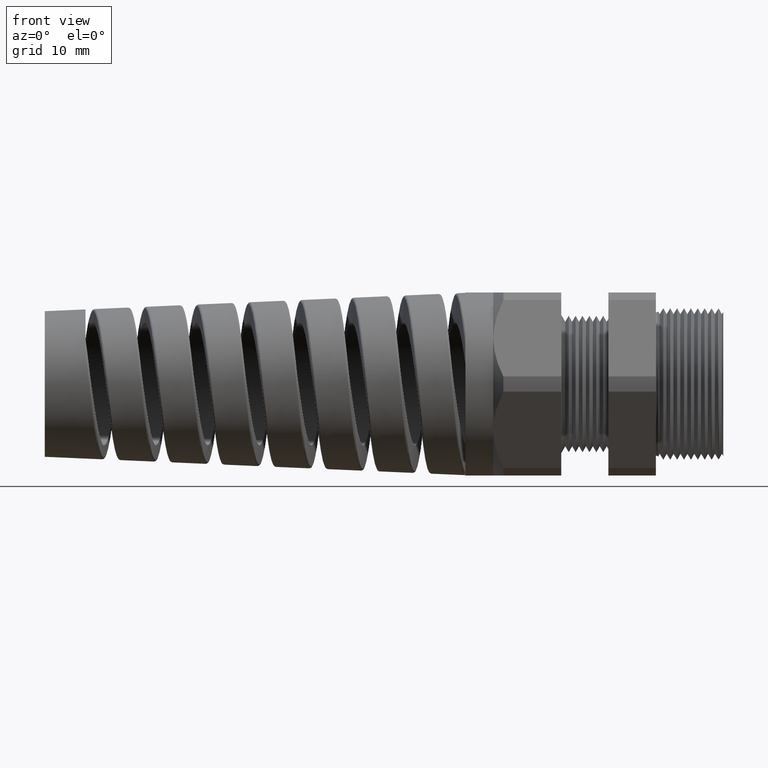
[diagram: clean part render]
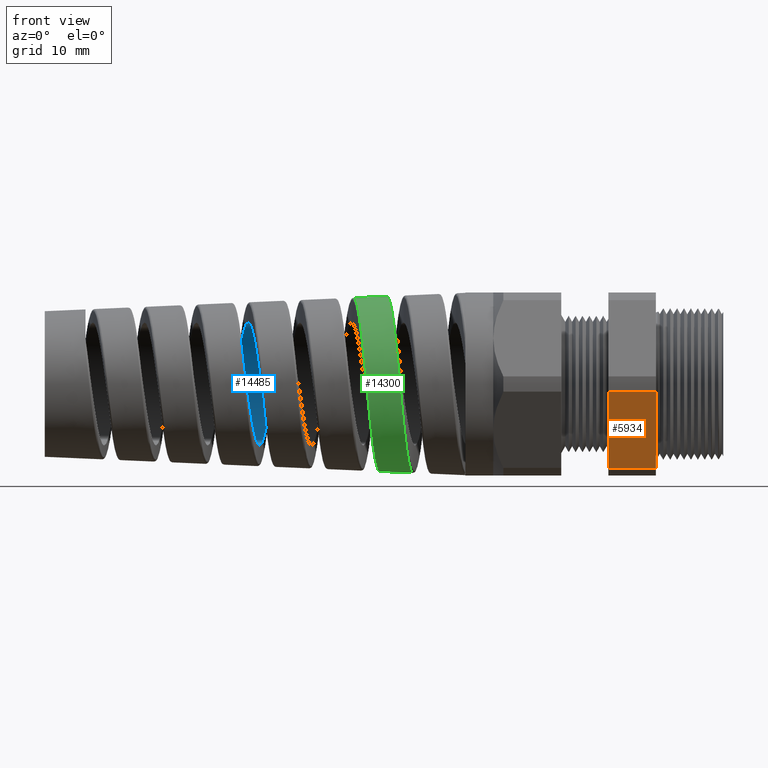
[diagram: same view with three faces highlighted in distinct colors, each labeled with its STEP entity id]
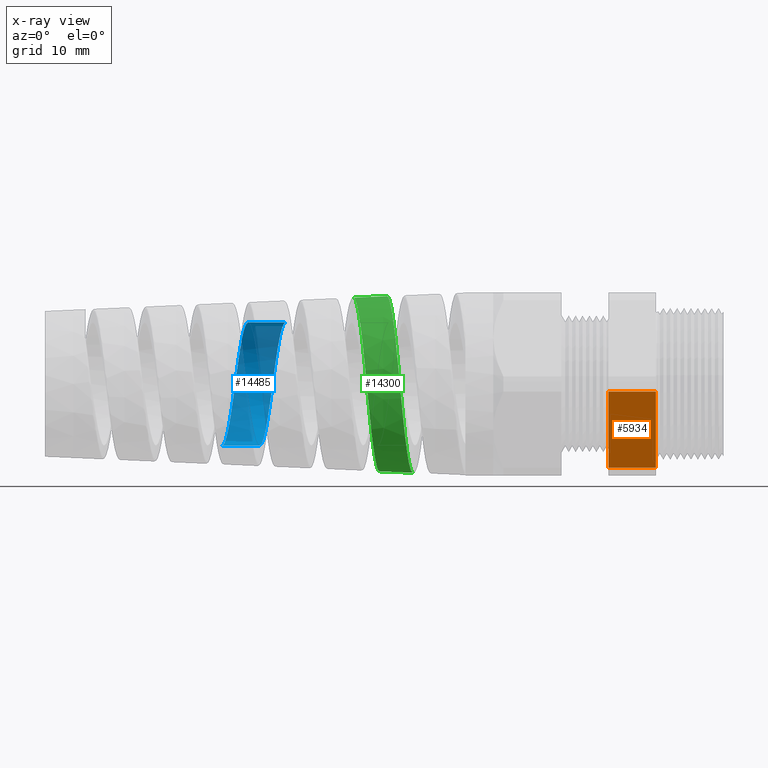
[diagram: x-ray of the same camera — body ghosted, the three highlighted faces saturated]
A machine part, front view with three faces highlighted in distinct colors.
The next image is the same camera in x-ray (body ghosted, the three faces saturated) — at least one of them is partly hidden behind the body in this view.
Their STEP definitions:

[orange] entity #5934 — the highlighted planar face has unit normal (0, -0.866, -0.5).
#5157 = CARTESIAN_POINT ( 'NONE',  ( -0.3100000000000000000, -0.3313250556190258700, -0.4861281698472630400 ) ) ;
#5158 = DIRECTION ( 'NONE',  ( 0.0000000000000000000, 0.5000000000000002200, -0.8660254037844386000 ) ) ;
#5159 = VECTOR ( 'NONE', #5158, 39.37007874015747400 ) ;
#5160 = CARTESIAN_POINT ( 'NONE',  ( -0.3100000000000000000, -0.1939934640057522900, -0.7239934640057527100 ) ) ;
#5161 = LINE ( 'NONE', #5160, #5159 ) ;
#5162 = CARTESIAN_POINT ( 'NONE',  ( -0.3100000000000000000, -0.5866618723924791300, -0.04387183015273717100 ) ) ;
#5783 = VERTEX_POINT ( 'NONE', #7164 ) ;
#5785 = EDGE_CURVE ( 'NONE', #5783, #5786, #7163, .T. ) ;
#5786 = VERTEX_POINT ( 'NONE', #7159 ) ;
#5864 = ORIENTED_EDGE ( 'NONE', *, *, #14547, .F. ) ;
#5932 = EDGE_CURVE ( 'NONE', #14545, #5786, #7398, .T. ) ;
#5934 = ADVANCED_FACE ( 'NONE', ( #7394 ), #7393, .T. ) ;
#5935 = EDGE_LOOP ( 'NONE', ( #5936, #5937, #5938, #5864 ) ) ;
#5936 = ORIENTED_EDGE ( 'NONE', *, *, #5932, .T. ) ;
#5937 = ORIENTED_EDGE ( 'NONE', *, *, #5785, .F. ) ;
#5938 = ORIENTED_EDGE ( 'NONE', *, *, #5939, .F. ) ;
#5939 = EDGE_CURVE ( 'NONE', #14548, #5783, #7388, .T. ) ;
#7159 = CARTESIAN_POINT ( 'NONE',  ( -0.5855905511811022600, -0.5866618723924791300, -0.04387183015273717100 ) ) ;
#7160 = DIRECTION ( 'NONE',  ( 0.0000000000000000000, -0.5000000000000002200, 0.8660254037844386000 ) ) ;
#7161 = VECTOR ( 'NONE', #7160, 39.37007874015747400 ) ;
#7162 = CARTESIAN_POINT ( 'NONE',  ( -0.5855905511811022600, -0.1939934640057524300, -0.7239934640057527100 ) ) ;
#7163 = LINE ( 'NONE', #7162, #7161 ) ;
#7164 = CARTESIAN_POINT ( 'NONE',  ( -0.5855905511811022600, -0.3313250556190258700, -0.4861281698472630400 ) ) ;
#7385 = DIRECTION ( 'NONE',  ( -1.000000000000000000, 0.0000000000000000000, 0.0000000000000000000 ) ) ;
#7386 = VECTOR ( 'NONE', #7385, 39.37007874015748100 ) ;
#7387 = CARTESIAN_POINT ( 'NONE',  ( 0.08000000000000023800, -0.3313250556190258700, -0.4861281698472630400 ) ) ;
#7388 = LINE ( 'NONE', #7387, #7386 ) ;
#7389 = DIRECTION ( 'NONE',  ( 0.0000000000000000000, 0.5000000000000001100, -0.8660254037844386000 ) ) ;
#7390 = DIRECTION ( 'NONE',  ( 0.0000000000000000000, -0.8660254037844386000, -0.5000000000000001100 ) ) ;
#7391 = CARTESIAN_POINT ( 'NONE',  ( 0.08000000000000023800, -0.3313250556190259800, -0.4861281698472630400 ) ) ;
#7392 = AXIS2_PLACEMENT_3D ( 'NONE', #7391, #7390, #7389 ) ;
#7393 = PLANE ( 'NONE',  #7392 ) ;
#7394 = FACE_OUTER_BOUND ( 'NONE', #5935, .T. ) ;
#7395 = DIRECTION ( 'NONE',  ( -1.000000000000000000, 0.0000000000000000000, 0.0000000000000000000 ) ) ;
#7396 = VECTOR ( 'NONE', #7395, 39.37007874015748100 ) ;
#7397 = CARTESIAN_POINT ( 'NONE',  ( 0.08000000000000023800, -0.5866618723924791300, -0.04387183015273717100 ) ) ;
#7398 = LINE ( 'NONE', #7397, #7396 ) ;
#14545 = VERTEX_POINT ( 'NONE', #5162 ) ;
#14547 = EDGE_CURVE ( 'NONE', #14545, #14548, #5161, .T. ) ;
#14548 = VERTEX_POINT ( 'NONE', #5157 ) ;

[blue] entity #14485 — the highlighted cylindrical surface (partial cylindrical patch) has radius 9.0424 mm, axis along (1, 0, 0).
#3458 = CARTESIAN_POINT ( 'NONE',  ( -2.822159956129014700, 4.852839836151481800E-013, -0.3560000000000000900 ) ) ;
#3916 = CARTESIAN_POINT ( 'NONE',  ( -2.455194617607312500, 4.797850723997763300E-013, 0.3559999999999998200 ) ) ;
#3917 = DIRECTION ( 'NONE',  ( 1.000000000000000000, 0.0000000000000000000, 0.0000000000000000000 ) ) ;
#3918 = VECTOR ( 'NONE', #3917, 39.37007874015748100 ) ;
#3919 = CARTESIAN_POINT ( 'NONE',  ( 0.09602717987635048200, 4.359742604964577000E-017, 0.3559999999999999800 ) ) ;
#3920 = LINE ( 'NONE', #3919, #3918 ) ;
#4059 = DIRECTION ( 'NONE',  ( 1.000000000000000000, 0.0000000000000000000, 0.0000000000000000000 ) ) ;
#4060 = VECTOR ( 'NONE', #4059, 39.37007874015748100 ) ;
#4061 = CARTESIAN_POINT ( 'NONE',  ( 0.09602717987635048200, 0.0000000000000000000, -0.3559999999999999800 ) ) ;
#4062 = LINE ( 'NONE', #4061, #4060 ) ;
#4063 = CARTESIAN_POINT ( 'NONE',  ( -2.605262965233127400, 5.842345059044108700E-013, -0.3559999999999999800 ) ) ;
#4462 = CARTESIAN_POINT ( 'NONE',  ( -2.772171272658247300, 0.3090010518207686500, -0.1783430733160978100 ) ) ;
#4463 = CARTESIAN_POINT ( 'NONE',  ( -2.769060175600740700, 0.3199751102197548900, -0.1577652059249336800 ) ) ;
#4464 = CARTESIAN_POINT ( 'NONE',  ( -2.764396290099594200, 0.3332989239104294800, -0.1256276647889313600 ) ) ;
#4465 = CARTESIAN_POINT ( 'NONE',  ( -2.762840170570397500, 0.3372218632710287100, -0.1146893645844773000 ) ) ;
#4466 = CARTESIAN_POINT ( 'NONE',  ( -2.759710569221188500, 0.3440100949561861700, -0.09235415521248231700 ) ) ;
#4467 = CARTESIAN_POINT ( 'NONE',  ( -2.758129407493230100, 0.3468828759323221400, -0.08090001860906004300 ) ) ;
#4468 = CARTESIAN_POINT ( 'NONE',  ( -2.753430151347194200, 0.3537205881253522300, -0.04651791096292925300 ) ) ;
#4469 = CARTESIAN_POINT ( 'NONE',  ( -2.750335237239457200, 0.3559879972746894900, -0.02342898587798301900 ) ) ;
#4470 = CARTESIAN_POINT ( 'NONE',  ( -2.744102333568295900, 0.3560119085573247300, 0.02306279576040249500 ) ) ;
#4471 = CARTESIAN_POINT ( 'NONE',  ( -2.740938026628621000, 0.3536934761794672300, 0.04666398048186461800 ) ) ;
#4472 = CARTESIAN_POINT ( 'NONE',  ( -2.734704423837953000, 0.3446193904982260400, 0.09227176089659572300 ) ) ;
#4473 = CARTESIAN_POINT ( 'NONE',  ( -2.731609644567114100, 0.3379009407361932000, 0.1144758483443580200 ) ) ;
#4474 = CARTESIAN_POINT ( 'NONE',  ( -2.726911596356519600, 0.3245076576625156600, 0.1468578275732302700 ) ) ;
#4475 = CARTESIAN_POINT ( 'NONE',  ( -2.725330183382749500, 0.3194605779817840700, 0.1575349802189352500 ) ) ;
#4476 = CARTESIAN_POINT ( 'NONE',  ( -2.722199657900354900, 0.3084514694989680700, 0.1781292279244567600 ) ) ;
#4477 = CARTESIAN_POINT ( 'NONE',  ( -2.720643488937810200, 0.3024732972460671400, 0.1880967917125647700 ) ) ;
#4478 = CARTESIAN_POINT ( 'NONE',  ( -2.715979568945030600, 0.2831480124816568300, 0.2170281028474377000 ) ) ;
#4479 = CARTESIAN_POINT ( 'NONE',  ( -2.712871846001793300, 0.2683967611726232300, 0.2350566343029512900 ) ) ;
#4480 = CARTESIAN_POINT ( 'NONE',  ( -2.706569610542169700, 0.2351635669462939500, 0.2683030740019231600 ) ) ;
#4481 = CARTESIAN_POINT ( 'NONE',  ( -2.703469243143174600, 0.2171833814658454300, 0.2830294006592599100 ) ) ;
#4482 = CARTESIAN_POINT ( 'NONE',  ( -2.698804113444630600, 0.1882551323016893600, 0.3023748846509795600 ) ) ;
#4483 = CARTESIAN_POINT ( 'NONE',  ( -2.697246743610998800, 0.1782836848846134900, 0.3083627526450868900 ) ) ;
#4484 = CARTESIAN_POINT ( 'NONE',  ( -2.694112416002199400, 0.1576697091581493200, 0.3193946185033113000 ) ) ;
#4485 = CARTESIAN_POINT ( 'NONE',  ( -2.692531378505624900, 0.1469974380314877900, 0.3244439611646978700 ) ) ;
#4486 = CARTESIAN_POINT ( 'NONE',  ( -2.687838801437250500, 0.1146586132422661600, 0.3378371283704689800 ) ) ;
#4487 = CARTESIAN_POINT ( 'NONE',  ( -2.684744743560596900, 0.09246309314700303100, 0.3445692855413835500 ) ) ;
#4488 = CARTESIAN_POINT ( 'NONE',  ( -2.678506281864904400, 0.04682558629164183800, 0.3536732681462578200 ) ) ;
#4489 = CARTESIAN_POINT ( 'NONE',  ( -2.675342649173015900, 0.02323129742777716900, 0.3560000000000088600 ) ) ;
#4490 = CARTESIAN_POINT ( 'NONE',  ( -2.672228253862314800, -1.328104976169842200E-013, 0.3560000000000002100 ) ) ;
#4491 = B_SPLINE_CURVE_WITH_KNOTS ( 'NONE', 3,
 ( #4490, #4489, #4488, #4487, #4486, #4485, #4484, #4483, #4482, #4481, #4480, #4479, #4478, #4477, #4476, #4475, #4474, #4473, #4472, #4471, #4470, #4469, #4468, #4467, #4466, #4465, #4464, #4463, #4462, #4545, #4544, #4543, #4542, #4541, #4540, #4539, #4538, #4537, #4536, #4535, #4534, #4533 ),
 .UNSPECIFIED., .F., .F.,
 ( 4, 2, 2, 2, 2, 2, 2, 2, 2, 2, 2, 2, 2, 2, 2, 2, 2, 2, 2, 2, 4 ),
 ( 0.2555521806162086600, 0.2573350309079793800, 0.2591178811997501600, 0.2600093063456355200, 0.2609007314915208800, 0.2626835817832916000, 0.2644664320750623200, 0.2653578572209476800, 0.2662492823668330400, 0.2680321326586038200, 0.2698149829503745400, 0.2715978332421452600, 0.2724892583880306200, 0.2733806835339159800, 0.2751635338256867000, 0.2769463841174574800, 0.2778378092633428400, 0.2787292344092282000, 0.2805120847009989200, 0.2822949349927697000, 0.2840777852845404200 ),
 .UNSPECIFIED. ) ;
#4502 = CARTESIAN_POINT ( 'NONE',  ( -2.517708166779331500, 0.3445884227954659800, 0.09241263041882284700 ) ) ;
#4503 = CARTESIAN_POINT ( 'NONE',  ( -2.522408301282094400, 0.3514275776553766300, 0.05806011117516423500 ) ) ;
#4504 = CARTESIAN_POINT ( 'NONE',  ( -2.523990848902510000, 0.3531591033938716300, 0.04637921325243144600 ) ) ;
#4505 = CARTESIAN_POINT ( 'NONE',  ( -2.527124703250969200, 0.3554394418804833200, 0.02313410658677568900 ) ) ;
#4506 = CARTESIAN_POINT ( 'NONE',  ( -2.528682371298846700, 0.3560023499608324600, 0.01152418667711453300 ) ) ;
#4507 = CARTESIAN_POINT ( 'NONE',  ( -2.533350321565377000, 0.3559952780125688100, -0.02326547350838919700 ) ) ;
#4508 = CARTESIAN_POINT ( 'NONE',  ( -2.536457433106064800, 0.3537425288732004000, -0.04642229489545348500 ) ) ;
#4509 = CARTESIAN_POINT ( 'NONE',  ( -2.542767214148643300, 0.3445647304205294900, -0.09254162710475337400 ) ) ;
#4510 = CARTESIAN_POINT ( 'NONE',  ( -2.545870425009987100, 0.3377882780981756300, -0.1147742022997402200 ) ) ;
#4511 = CARTESIAN_POINT ( 'NONE',  ( -2.550538968514637800, 0.3244763503929402600, -0.1469204125341193300 ) ) ;
#4512 = CARTESIAN_POINT ( 'NONE',  ( -2.552097281704470300, 0.3195106909237094800, -0.1574339433295144900 ) ) ;
#4513 = CARTESIAN_POINT ( 'NONE',  ( -2.555233208672073300, 0.3084996587719225900, -0.1780463104488109500 ) ) ;
#4514 = CARTESIAN_POINT ( 'NONE',  ( -2.556815673891971000, 0.3024286926234400200, -0.1881729729598848600 ) ) ;
#4515 = CARTESIAN_POINT ( 'NONE',  ( -2.561513160536102300, 0.2829697337934694000, -0.2172759932776563400 ) ) ;
#4516 = CARTESIAN_POINT ( 'NONE',  ( -2.564609771302916100, 0.2682509019515763600, -0.2351988208704081100 ) ) ;
#4517 = CARTESIAN_POINT ( 'NONE',  ( -2.570851865881368600, 0.2353664511366112300, -0.2681038332736436800 ) ) ;
#4518 = CARTESIAN_POINT ( 'NONE',  ( -2.574018494357527100, 0.2170386431017708700, -0.2831430204070185500 ) ) ;
#4519 = CARTESIAN_POINT ( 'NONE',  ( -2.580252930685929000, 0.1783990444583968800, -0.3089490630201007200 ) ) ;
#4520 = CARTESIAN_POINT ( 'NONE',  ( -2.583350834729506200, 0.1579446371576399800, -0.3199007477313860500 ) ) ;
#4521 = CARTESIAN_POINT ( 'NONE',  ( -2.588058300756999500, 0.1255374151911246600, -0.3333363265361589700 ) ) ;
#4522 = CARTESIAN_POINT ( 'NONE',  ( -2.589640082266339200, 0.1144257403103962300, -0.3373110450831110500 ) ) ;
#4523 = CARTESIAN_POINT ( 'NONE',  ( -2.592769721519402500, 0.09210546711105217800, -0.3440764073703654900 ) ) ;
#4524 = CARTESIAN_POINT ( 'NONE',  ( -2.595882672592794800, 0.06957135075506019900, -0.3497119567977191000 ) ) ;
#4525 = CARTESIAN_POINT ( 'NONE',  ( -2.598992154035647300, 0.04662076965795574500, -0.3531259007206738500 ) ) ;
#4526 = CARTESIAN_POINT ( 'NONE',  ( -2.602114730385442200, 0.02346165782294322100, -0.3554165844969625100 ) ) ;
#4527 = CARTESIAN_POINT ( 'NONE',  ( -2.603688644498007900, 0.01173199416358084800, -0.3559999999999806700 ) ) ;
#4528 = CARTESIAN_POINT ( 'NONE',  ( -2.605262965233127400, 5.842345059044108700E-013, -0.3559999999999999800 ) ) ;
#4530 = B_SPLINE_CURVE_WITH_KNOTS ( 'NONE', 3,
 ( #4528, #4527, #4526, #4525, #4524, #4523, #4522, #4521, #4520, #4519, #4518, #4517, #4516, #4515, #4514, #4513, #4512, #4511, #4510, #4509, #4508, #4507, #4506, #4505, #4504, #4503, #4502, #4582, #4581, #4580, #4579, #4578, #4577, #4576, #4575, #4574, #4573, #4572, #4571, #4570, #4569, #4568, #4567, #4566, #4565 ),
 .UNSPECIFIED., .F., .F.,
 ( 4, 2, 1, 2, 2, 2, 2, 2, 2, 2, 2, 2, 2, 2, 2, 2, 2, 2, 2, 2, 2, 2, 4 ),
 ( 0.1913456243594174600, 0.1922352419578659000, 0.1931248595563143400, 0.1940144771547627800, 0.1949040947532112200, 0.1966833299501081200, 0.1984625651470050000, 0.2002418003439018800, 0.2011314179423503200, 0.2020210355407987500, 0.2038002707376956300, 0.2055795059345925400, 0.2064691235330409800, 0.2073587411314893900, 0.2091379763283862900, 0.2109172115252831700, 0.2126964467221800500, 0.2135860643206284900, 0.2144756819190769500, 0.2162549171159738300, 0.2180341523128707400, 0.2189237699113191800, 0.2198133875097676400 ),
 .UNSPECIFIED. ) ;
#4533 = CARTESIAN_POINT ( 'NONE',  ( -2.822159956129014700, 4.852839836151481800E-013, -0.3560000000000000900 ) ) ;
#4534 = CARTESIAN_POINT ( 'NONE',  ( -2.819021819547832000, 0.02340949502332323500, -0.3559999999999683400 ) ) ;
#4535 = CARTESIAN_POINT ( 'NONE',  ( -2.815925157162083400, 0.04650602325123237600, -0.3537127300167002300 ) ) ;
#4536 = CARTESIAN_POINT ( 'NONE',  ( -2.809697390097454200, 0.09207215863489387500, -0.3446711812420965000 ) ) ;
#4537 = CARTESIAN_POINT ( 'NONE',  ( -2.806534863695327800, 0.1147592199642840800, -0.3377987681894283900 ) ) ;
#4538 = CARTESIAN_POINT ( 'NONE',  ( -2.800294772739699000, 0.1577628593627296800, -0.3199821347556792700 ) ) ;
#4539 = CARTESIAN_POINT ( 'NONE',  ( -2.797200202759958300, 0.1782222537088115600, -0.3090582355348829900 ) ) ;
#4540 = CARTESIAN_POINT ( 'NONE',  ( -2.792509383668043900, 0.2073265739947740000, -0.2896337909893030900 ) ) ;
#4541 = CARTESIAN_POINT ( 'NONE',  ( -2.790929040594535100, 0.2168098431521451000, -0.2826061887351118400 ) ) ;
#4542 = CARTESIAN_POINT ( 'NONE',  ( -2.787793664414399700, 0.2348897803745577900, -0.2677677297110974700 ) ) ;
#4543 = CARTESIAN_POINT ( 'NONE',  ( -2.786235965763902600, 0.2435071117495804800, -0.2599516833510279200 ) ) ;
#4544 = CARTESIAN_POINT ( 'NONE',  ( -2.781570209887111100, 0.2681191232358248200, -0.2353433669213471600 ) ) ;
#4545 = CARTESIAN_POINT ( 'NONE',  ( -2.778469848047620900, 0.2828856713930608700, -0.2174019290316200900 ) ) ;
#4565 = CARTESIAN_POINT ( 'NONE',  ( -2.455194617607312500, 4.797850723997763300E-013, 0.3559999999999998200 ) ) ;
#4566 = CARTESIAN_POINT ( 'NONE',  ( -2.456758964248498200, 0.01165908351804917700, 0.3559999999999843300 ) ) ;
#4567 = CARTESIAN_POINT ( 'NONE',  ( -2.458340073502764100, 0.02344329785348109000, 0.3554197981418403300 ) ) ;
#4568 = CARTESIAN_POINT ( 'NONE',  ( -2.461479002432248400, 0.04672353271327530500, 0.3531143336317927300 ) ) ;
#4569 = CARTESIAN_POINT ( 'NONE',  ( -2.463038256526357600, 0.05823092676476685600, 0.3513968394085299500 ) ) ;
#4570 = CARTESIAN_POINT ( 'NONE',  ( -2.467708383377984000, 0.09236170625915128600, 0.3445919812323701100 ) ) ;
#4571 = CARTESIAN_POINT ( 'NONE',  ( -2.470810512429312000, 0.1145975589729101000, 0.3378678886742327900 ) ) ;
#4572 = CARTESIAN_POINT ( 'NONE',  ( -2.477111267551890700, 0.1579800309239773900, 0.3198900132060901700 ) ) ;
#4573 = CARTESIAN_POINT ( 'NONE',  ( -2.480227827331087800, 0.1785490667816322700, 0.3088591541507040300 ) ) ;
#4574 = CARTESIAN_POINT ( 'NONE',  ( -2.484895547855639800, 0.2074679768682410100, 0.2895297483196138700 ) ) ;
#4575 = CARTESIAN_POINT ( 'NONE',  ( -2.486452567330835500, 0.2168007962505145200, 0.2826119879218528300 ) ) ;
#4576 = CARTESIAN_POINT ( 'NONE',  ( -2.489583540434637100, 0.2348396398335701700, 0.2678105011660998300 ) ) ;
#4577 = CARTESIAN_POINT ( 'NONE',  ( -2.491165626985470300, 0.2435862608103514000, 0.2598813774041983100 ) ) ;
#4578 = CARTESIAN_POINT ( 'NONE',  ( -2.495870048659745200, 0.2683676136725935400, 0.2350770321404555800 ) ) ;
#4579 = CARTESIAN_POINT ( 'NONE',  ( -2.498967883353122600, 0.2830711092299750800, 0.2171331110047142200 ) ) ;
#4580 = CARTESIAN_POINT ( 'NONE',  ( -2.505204721888603500, 0.3088964461710150800, 0.1784909698505535200 ) ) ;
#4581 = CARTESIAN_POINT ( 'NONE',  ( -2.508371039982964400, 0.3200714167107469600, 0.1575784303674544800 ) ) ;
#4582 = CARTESIAN_POINT ( 'NONE',  ( -2.514610782130706200, 0.3378493239893885500, 0.1146058802688953900 ) ) ;
#4784 = FACE_OUTER_BOUND ( 'NONE', #14486, .T. ) ;
#4809 = DIRECTION ( 'NONE',  ( 0.0000000000000000000, 0.0000000000000000000, -1.000000000000000000 ) ) ;
#4810 = DIRECTION ( 'NONE',  ( 1.000000000000000000, 0.0000000000000000000, 0.0000000000000000000 ) ) ;
#4811 = CARTESIAN_POINT ( 'NONE',  ( 0.09602717987635048200, 0.0000000000000000000, 0.0000000000000000000 ) ) ;
#4812 = AXIS2_PLACEMENT_3D ( 'NONE', #4811, #4810, #4809 ) ;
#4813 = CYLINDRICAL_SURFACE ( 'NONE', #4812, 0.3559999999999999800 ) ;
#12093 = CARTESIAN_POINT ( 'NONE',  ( -2.672228253862314800, -1.328104976169842200E-013, 0.3560000000000002100 ) ) ;
#13694 = VERTEX_POINT ( 'NONE', #12093 ) ;
#14347 = VERTEX_POINT ( 'NONE', #3458 ) ;
#14392 = EDGE_CURVE ( 'NONE', #13694, #14393, #3920, .T. ) ;
#14393 = VERTEX_POINT ( 'NONE', #3916 ) ;
#14412 = VERTEX_POINT ( 'NONE', #4063 ) ;
#14414 = EDGE_CURVE ( 'NONE', #14347, #14412, #4062, .T. ) ;
#14462 = ORIENTED_EDGE ( 'NONE', *, *, #14392, .F. ) ;
#14463 = ORIENTED_EDGE ( 'NONE', *, *, #14464, .T. ) ;
#14464 = EDGE_CURVE ( 'NONE', #13694, #14347, #4491, .T. ) ;
#14465 = ORIENTED_EDGE ( 'NONE', *, *, #14414, .T. ) ;
#14466 = ORIENTED_EDGE ( 'NONE', *, *, #14467, .T. ) ;
#14467 = EDGE_CURVE ( 'NONE', #14412, #14393, #4530, .T. ) ;
#14485 = ADVANCED_FACE ( 'NONE', ( #4784 ), #4813, .F. ) ;
#14486 = EDGE_LOOP ( 'NONE', ( #14462, #14463, #14465, #14466 ) ) ;

[green] entity #14300 — the highlighted conical surface has half-angle 2.5 deg.
#92 = VERTEX_POINT ( 'NONE', #6346 ) ;
#1702 = EDGE_CURVE ( 'NONE', #4532, #92, #6411, .T. ) ;
#2763 = CARTESIAN_POINT ( 'NONE',  ( -1.910508939667513000, 2.050288582835564000E-015, -0.5064008700436359900 ) ) ;
#2778 = CARTESIAN_POINT ( 'NONE',  ( -1.717931656047938100, 1.097565642639652400E-012, -0.5148089758292266900 ) ) ;
#2862 = LINE ( 'NONE', #2891, #2890 ) ;
#2889 = DIRECTION ( 'NONE',  ( 0.9990482215818576900, 0.0000000000000000000, -0.04361938736533631200 ) ) ;
#2890 = VECTOR ( 'NONE', #2889, 39.37007874015748100 ) ;
#2891 = CARTESIAN_POINT ( 'NONE',  ( -1.369999999999999900, 0.0000000000000000000, -0.5299999999999999200 ) ) ;
#2936 = FACE_OUTER_BOUND ( 'NONE', #14301, .T. ) ;
#2937 = CARTESIAN_POINT ( 'NONE',  ( -2.011884951029374600, -0.4276979697913496600, 0.2632899362125397100 ) ) ;
#2938 = CARTESIAN_POINT ( 'NONE',  ( -2.015003962674008200, -0.4095013763900128800, 0.2905495970394713600 ) ) ;
#2939 = CARTESIAN_POINT ( 'NONE',  ( -2.016564047286533600, -0.3997361221138179300, 0.3037364337950038100 ) ) ;
#2940 = CARTESIAN_POINT ( 'NONE',  ( -2.019699781935170500, -0.3788517963247867700, 0.3292092492659675100 ) ) ;
#2941 = CARTESIAN_POINT ( 'NONE',  ( -2.021284391478832500, -0.3676654951950122400, 0.3415591736480979600 ) ) ;
#2942 = CARTESIAN_POINT ( 'NONE',  ( -2.026011953038984200, -0.3325499349010856400, 0.3766505016315855900 ) ) ;
#2943 = CARTESIAN_POINT ( 'NONE',  ( -2.029121956612905700, -0.3071663983255728000, 0.3974292582208710500 ) ) ;
#2944 = CARTESIAN_POINT ( 'NONE',  ( -2.033815681373382300, -0.2662071359055895300, 0.4247603770493875200 ) ) ;
#2945 = CARTESIAN_POINT ( 'NONE',  ( -2.035384799483610500, -0.2520699488570353200, 0.4332267147376515600 ) ) ;
#2946 = CARTESIAN_POINT ( 'NONE',  ( -2.038547694370402400, -0.2227974913804106100, 0.4488291271710947400 ) ) ;
#2947 = CARTESIAN_POINT ( 'NONE',  ( -2.040128662019297800, -0.2077787657684371200, 0.4558953445153297000 ) ) ;
#2948 = CARTESIAN_POINT ( 'NONE',  ( -2.044834922684141800, -0.1621563931084496800, 0.4746826124467542500 ) ) ;
#2949 = CARTESIAN_POINT ( 'NONE',  ( -2.047947903735110000, -0.1307697398842130300, 0.4841354964549289800 ) ) ;
#2950 = CARTESIAN_POINT ( 'NONE',  ( -2.052671060971315700, -0.08222782002191639200, 0.4936643172299620700 ) ) ;
#2951 = CARTESIAN_POINT ( 'NONE',  ( -2.054262643265873900, -0.06571326161704692200, 0.4960637171124445100 ) ) ;
#2952 = CARTESIAN_POINT ( 'NONE',  ( -2.057418611946956400, -0.03281617213466907200, 0.4991820661408183400 ) ) ;
#2953 = CARTESIAN_POINT ( 'NONE',  ( -2.058986897178977800, -0.01639455865641465900, 0.4999181824175556500 ) ) ;
#2954 = CARTESIAN_POINT ( 'NONE',  ( -2.060553305944802500, 1.360586853540828600E-014, 0.4998497915338593300 ) ) ;
#2955 = B_SPLINE_CURVE_WITH_KNOTS ( 'NONE', 3,
 ( #2954, #2953, #2952, #2951, #2950, #2949, #2948, #2947, #2946, #2945, #2944, #2943, #2942, #2941, #2940, #2939, #2938, #2937, #3015, #3014, #3013, #3012, #3011, #3010, #3009, #3008, #3007, #3006, #3005, #3004, #3003, #3002, #3001, #3000, #2999, #2998, #2997, #2996, #2995, #2994, #2993, #2992, #2991, #2990, #2989, #2988, #2987, #2986, #2985, #2984, #2983, #2982 ),
 .UNSPECIFIED., .F., .F.,
 ( 4, 2, 2, 2, 2, 2, 2, 2, 2, 2, 2, 2, 2, 2, 2, 2, 2, 2, 2, 2, 2, 2, 2, 2, 2, 4 ),
 ( 0.3902262693320784900, 0.3914983757488040800, 0.3927704821655296800, 0.3953146949989808600, 0.3965868014157065100, 0.3978589078324321100, 0.4004031206658832900, 0.4016752270826088900, 0.4029473334993344800, 0.4042194399160600700, 0.4054915463327857200, 0.4080357591662369100, 0.4093078655829625000, 0.4105799719996881000, 0.4131241848331392900, 0.4143962912498648800, 0.4156683976665904700, 0.4182126105000417100, 0.4194847169167673100, 0.4207568233334929000, 0.4220289297502185000, 0.4233010361669440900, 0.4258452490003952800, 0.4271173554171209300, 0.4283894618338465200, 0.4309336746672977100 ),
 .UNSPECIFIED. ) ;
#2956 = DIRECTION ( 'NONE',  ( 0.0000000000000000000, 0.0000000000000000000, -1.000000000000000000 ) ) ;
#2957 = DIRECTION ( 'NONE',  ( 1.000000000000000000, 0.0000000000000000000, 0.0000000000000000000 ) ) ;
#2958 = CARTESIAN_POINT ( 'NONE',  ( -1.369999999999999900, 0.0000000000000000000, 0.0000000000000000000 ) ) ;
#2959 = AXIS2_PLACEMENT_3D ( 'NONE', #2958, #2957, #2956 ) ;
#2960 = CONICAL_SURFACE ( 'NONE', #2959, 0.5299999999999999200, 0.04363323129985854900 ) ;
#2973 = CARTESIAN_POINT ( 'NONE',  ( -1.733469128956904600, -0.1644980197811764800, -0.4873911230564666500 ) ) ;
#2974 = CARTESIAN_POINT ( 'NONE',  ( -1.730365800944767800, -0.1325292889743817400, -0.4971770657664080200 ) ) ;
#2975 = CARTESIAN_POINT ( 'NONE',  ( -1.728804203061085300, -0.1162005265367253400, -0.5013202947577197800 ) ) ;
#2976 = CARTESIAN_POINT ( 'NONE',  ( -1.724105557222018100, -0.06656624991090795400, -0.5113307949112294600 ) ) ;
#2978 = CARTESIAN_POINT ( 'NONE',  ( -1.721023082773744900, -0.03334426618438662800, -0.5146740012235164800 ) ) ;
#2979 = CARTESIAN_POINT ( 'NONE',  ( -1.717931656047938100, 1.097565642639652400E-012, -0.5148089758292266900 ) ) ;
#2980 = B_SPLINE_CURVE_WITH_KNOTS ( 'NONE', 3,
 ( #2979, #2978, #2976, #2975, #2974, #2973, #3065, #3064, #3063, #3062, #3061, #3060, #3059, #3058, #3057, #3056, #3055, #3054, #3053, #3052, #3051, #3050, #3049, #3048, #3047, #3046, #3045, #3044, #3043, #3042, #3041, #3040, #3039, #3038, #3037, #3035, #3034, #3033, #3032, #3031, #3030, #3029, #3028, #3027, #3026, #3025, #3024, #3023 ),
 .UNSPECIFIED., .F., .F.,
 ( 4, 2, 2, 2, 2, 2, 2, 2, 2, 2, 2, 2, 2, 2, 2, 2, 2, 2, 2, 2, 2, 2, 2, 4 ),
 ( 0.08192737933762384000, 0.08449403265235944100, 0.08577735930972725500, 0.08706068596709505600, 0.08834401262446285600, 0.08962733928183067000, 0.09219399259656627100, 0.09476064591130188600, 0.09732729922603748600, 0.09861062588340528700, 0.09989395254077308700, 0.1024606058555086900, 0.1050272591702442700, 0.1063105858276120800, 0.1075939124849798800, 0.1101605657997154800, 0.1114438924570832800, 0.1127272191144510800, 0.1152938724291866800, 0.1165771990865544800, 0.1178605257439222600, 0.1191438524012900700, 0.1204271790586578800, 0.1229938323733934700 ),
 .UNSPECIFIED. ) ;
#2982 = CARTESIAN_POINT ( 'NONE',  ( -1.910508939667513000, 2.050288582835564000E-015, -0.5064008700436359900 ) ) ;
#2983 = CARTESIAN_POINT ( 'NONE',  ( -1.913621135198933400, -0.03299531359433219300, -0.5062649886522186900 ) ) ;
#2984 = CARTESIAN_POINT ( 'NONE',  ( -1.916699167665117900, -0.06560776605969588500, -0.5029359177876133700 ) ) ;
#2985 = CARTESIAN_POINT ( 'NONE',  ( -1.921353389691331100, -0.1139496868147165200, -0.4932019639955638700 ) ) ;
#2986 = CARTESIAN_POINT ( 'NONE',  ( -1.922914129916260000, -0.1299989463906941500, -0.4891519227959620900 ) ) ;
#2987 = CARTESIAN_POINT ( 'NONE',  ( -1.926050331941098000, -0.1617596254223868900, -0.4794420067378971600 ) ) ;
#2988 = CARTESIAN_POINT ( 'NONE',  ( -1.927606357471939500, -0.1772742249066283900, -0.4738458408093373900 ) ) ;
#2989 = CARTESIAN_POINT ( 'NONE',  ( -1.932260586923533600, -0.2227545257546198800, -0.4549066114060503200 ) ) ;
#2990 = CARTESIAN_POINT ( 'NONE',  ( -1.935344391462136400, -0.2516665907133080500, -0.4394326131743583300 ) ) ;
#2991 = CARTESIAN_POINT ( 'NONE',  ( -1.940031061630786800, -0.2928731764299667400, -0.4118694149873744500 ) ) ;
#2992 = CARTESIAN_POINT ( 'NONE',  ( -1.941607008202945300, -0.3062685904202255800, -0.4019203313719458300 ) ) ;
#2993 = CARTESIAN_POINT ( 'NONE',  ( -1.944726185239177700, -0.3317459665235125700, -0.3809822498208983400 ) ) ;
#2994 = CARTESIAN_POINT ( 'NONE',  ( -1.946277782899857600, -0.3439041431623871500, -0.3699474570622876000 ) ) ;
#2995 = CARTESIAN_POINT ( 'NONE',  ( -1.949379172160113700, -0.3670789761627445400, -0.3467672189627640800 ) ) ;
#2996 = CARTESIAN_POINT ( 'NONE',  ( -1.950929080546757000, -0.3780955999982182300, -0.3346217574731237300 ) ) ;
#2997 = CARTESIAN_POINT ( 'NONE',  ( -1.954042048757257200, -0.3989741881626373000, -0.3092093847360505900 ) ) ;
#2998 = CARTESIAN_POINT ( 'NONE',  ( -1.955610457666163500, -0.4088675357936523100, -0.2958951091632920400 ) ) ;
#2999 = CARTESIAN_POINT ( 'NONE',  ( -1.960323424147116800, -0.4365354094031556600, -0.2545222713157260200 ) ) ;
#3000 = CARTESIAN_POINT ( 'NONE',  ( -1.963419196864119500, -0.4520014014502925500, -0.2255614579773959600 ) ) ;
#3001 = CARTESIAN_POINT ( 'NONE',  ( -1.968081708915769600, -0.4708769242931110100, -0.1801281695310817700 ) ) ;
#3002 = CARTESIAN_POINT ( 'NONE',  ( -1.969638966275790500, -0.4764430017948053100, -0.1646493310083038100 ) ) ;
#3003 = CARTESIAN_POINT ( 'NONE',  ( -1.972774965672000800, -0.4860849990363410600, -0.1330066241770397600 ) ) ;
#3004 = CARTESIAN_POINT ( 'NONE',  ( -1.974354058212502500, -0.4901500477673002000, -0.1168366008270263900 ) ) ;
#3005 = CARTESIAN_POINT ( 'NONE',  ( -1.979042384517040800, -0.4998324131090456900, -0.06836448459347728400 ) ) ;
#3006 = CARTESIAN_POINT ( 'NONE',  ( -1.982137964194143200, -0.5030798145150493500, -0.03574870923927484000 ) ) ;
#3007 = CARTESIAN_POINT ( 'NONE',  ( -1.986823852900220000, -0.5031537121979109400, 0.01361681721754190600 ) ) ;
#3008 = CARTESIAN_POINT ( 'NONE',  ( -1.988400437116587800, -0.5023645200675978000, 0.03022476444023109600 ) ) ;
#3009 = CARTESIAN_POINT ( 'NONE',  ( -1.991547527994276000, -0.4991491559474889900, 0.06321041848925480800 ) ) ;
#3010 = CARTESIAN_POINT ( 'NONE',  ( -1.993109878846934100, -0.4967402157513602900, 0.07950251254100654300 ) ) ;
#3011 = CARTESIAN_POINT ( 'NONE',  ( -1.997786713395023800, -0.4871788308128510200, 0.1277917289682473900 ) ) ;
#3012 = CARTESIAN_POINT ( 'NONE',  ( -2.000890290143091800, -0.4777139222469361000, 0.1592074205270201900 ) ) ;
#3013 = CARTESIAN_POINT ( 'NONE',  ( -2.005613453151700500, -0.4587505185701530300, 0.2051237266150337200 ) ) ;
#3014 = CARTESIAN_POINT ( 'NONE',  ( -2.007194469598987000, -0.4516395309209909600, 0.2201748689094518200 ) ) ;
#3015 = CARTESIAN_POINT ( 'NONE',  ( -2.010326057571113700, -0.4361293024731640000, 0.2492171040085183500 ) ) ;
#3023 = CARTESIAN_POINT ( 'NONE',  ( -1.867887396387436500, -7.173761732608894500E-014, 0.5082617668114601800 ) ) ;
#3024 = CARTESIAN_POINT ( 'NONE',  ( -1.864753262355114600, -0.03337112452392408000, 0.5083986060585080600 ) ) ;
#3025 = CARTESIAN_POINT ( 'NONE',  ( -1.861636578236241400, -0.06658516868202568600, 0.5052798853192389500 ) ) ;
#3026 = CARTESIAN_POINT ( 'NONE',  ( -1.856897305016183900, -0.1161558029825420400, 0.4955898560146230800 ) ) ;
#3027 = CARTESIAN_POINT ( 'NONE',  ( -1.855311305581036400, -0.1325861089154059800, 0.4915176374716125300 ) ) ;
#3028 = CARTESIAN_POINT ( 'NONE',  ( -1.852171308634506600, -0.1646439985681226700, 0.4818719205683257800 ) ) ;
#3029 = CARTESIAN_POINT ( 'NONE',  ( -1.850608876642262600, -0.1803603799094110100, 0.4762827194848094400 ) ) ;
#3030 = CARTESIAN_POINT ( 'NONE',  ( -1.847484017405845600, -0.2111754238848004300, 0.4635935170069655500 ) ) ;
#3031 = CARTESIAN_POINT ( 'NONE',  ( -1.845921653052161600, -0.2262740927170039700, 0.4564935151157704100 ) ) ;
#3032 = CARTESIAN_POINT ( 'NONE',  ( -1.842782513025317000, -0.2558432964586660500, 0.4407608265281587300 ) ) ;
#3033 = CARTESIAN_POINT ( 'NONE',  ( -1.841196768779628900, -0.2703912819904837300, 0.4320735895056513300 ) ) ;
#3034 = CARTESIAN_POINT ( 'NONE',  ( -1.836468539950018200, -0.3123849618467957600, 0.4040720389328539300 ) ) ;
#3035 = CARTESIAN_POINT ( 'NONE',  ( -1.833360387305598100, -0.3381671598798305900, 0.3829122959562734600 ) ) ;
#3037 = CARTESIAN_POINT ( 'NONE',  ( -1.828672988106657500, -0.3735952943476550900, 0.3475319864061450200 ) ) ;
#3038 = CARTESIAN_POINT ( 'NONE',  ( -1.827106607135950500, -0.3848599660192555400, 0.3351274086515398900 ) ) ;
#3039 = CARTESIAN_POINT ( 'NONE',  ( -1.823950475691697300, -0.4062646387439353100, 0.3090585755054973700 ) ) ;
#3040 = CARTESIAN_POINT ( 'NONE',  ( -1.822373911271376200, -0.4163092550472961600, 0.2954999091295181800 ) ) ;
#3041 = CARTESIAN_POINT ( 'NONE',  ( -1.817682011847032900, -0.4441614734417425000, 0.2537757686206011900 ) ) ;
#3042 = CARTESIAN_POINT ( 'NONE',  ( -1.814580753267313900, -0.4598689317542106200, 0.2243796406913826600 ) ) ;
#3043 = CARTESIAN_POINT ( 'NONE',  ( -1.809879619829616300, -0.4791048584835007100, 0.1779061015406800400 ) ) ;
#3044 = CARTESIAN_POINT ( 'NONE',  ( -1.808296157756426900, -0.4848125832529389100, 0.1619278419126124500 ) ) ;
#3045 = CARTESIAN_POINT ( 'NONE',  ( -1.805157146174920500, -0.4945356073684866700, 0.1297630481089792100 ) ) ;
#3046 = CARTESIAN_POINT ( 'NONE',  ( -1.803597931572821000, -0.4985750261657235200, 0.1135432345632037400 ) ) ;
#3047 = CARTESIAN_POINT ( 'NONE',  ( -1.798927940148942400, -0.5082845476732019700, 0.06448330282915117100 ) ) ;
#3048 = CARTESIAN_POINT ( 'NONE',  ( -1.795824953505535700, -0.5115692464834630200, 0.03124655254290482200 ) ) ;
#3049 = CARTESIAN_POINT ( 'NONE',  ( -1.789520356483963700, -0.5115096118239042000, -0.03631774923301480500 ) ) ;
#3050 = CARTESIAN_POINT ( 'NONE',  ( -1.786414465547121500, -0.5081569083567015800, -0.06961530404600452200 ) ) ;
#3051 = CARTESIAN_POINT ( 'NONE',  ( -1.781752895235481100, -0.4983649733577115200, -0.1186471549422271200 ) ) ;
#3052 = CARTESIAN_POINT ( 'NONE',  ( -1.780197601752272000, -0.4943013104260266000, -0.1348496383017013000 ) ) ;
#3053 = CARTESIAN_POINT ( 'NONE',  ( -1.777069152454153500, -0.4845420344227285800, -0.1669644869327224500 ) ) ;
#3054 = CARTESIAN_POINT ( 'NONE',  ( -1.775489353029564100, -0.4788124655381332300, -0.1829411031184896600 ) ) ;
#3055 = CARTESIAN_POINT ( 'NONE',  ( -1.770798737141068300, -0.4595004544121787400, -0.2294407897124732300 ) ) ;
#3056 = CARTESIAN_POINT ( 'NONE',  ( -1.767709828806630900, -0.4437586970674876100, -0.2588246836130229100 ) ) ;
#3057 = CARTESIAN_POINT ( 'NONE',  ( -1.761488404481434300, -0.4066269780068168500, -0.3143963587100450700 ) ) ;
#3058 = CARTESIAN_POINT ( 'NONE',  ( -1.758331617165420900, -0.3850040430621405300, -0.3407386417454218400 ) ) ;
#3059 = CARTESIAN_POINT ( 'NONE',  ( -1.752118206819897100, -0.3377646173379716400, -0.3879747842320522800 ) ) ;
#3060 = CARTESIAN_POINT ( 'NONE',  ( -1.749033668132644600, -0.3120153961207100500, -0.4091537863807793200 ) ) ;
#3061 = CARTESIAN_POINT ( 'NONE',  ( -1.744350426960289600, -0.2701513803715597200, -0.4371982711467537500 ) ) ;
#3062 = CARTESIAN_POINT ( 'NONE',  ( -1.742775316487212800, -0.2556050793600371800, -0.4459371355868962400 ) ) ;
#3063 = CARTESIAN_POINT ( 'NONE',  ( -1.739659021271498000, -0.2260403525770673700, -0.4617785812032401100 ) ) ;
#3064 = CARTESIAN_POINT ( 'NONE',  ( -1.738109983854158000, -0.2109531411098830000, -0.4689333037220211300 ) ) ;
#3065 = CARTESIAN_POINT ( 'NONE',  ( -1.735015000030392100, -0.1801819857620182400, -0.4817395929688070300 ) ) ;
#4532 = VERTEX_POINT ( 'NONE', #6688 ) ;
#6346 = CARTESIAN_POINT ( 'NONE',  ( -1.867887396387436500, -7.173761732608894500E-014, 0.5082617668114601800 ) ) ;
#6408 = DIRECTION ( 'NONE',  ( 0.9990482215818576900, 5.341834311772761800E-018, 0.04361938736533631200 ) ) ;
#6409 = VECTOR ( 'NONE', #6408, 39.37007874015748100 ) ;
#6410 = CARTESIAN_POINT ( 'NONE',  ( -1.369999999999999900, 6.490628035480970000E-017, 0.5299999999999999200 ) ) ;
#6411 = LINE ( 'NONE', #6410, #6409 ) ;
#6688 = CARTESIAN_POINT ( 'NONE',  ( -2.060553305944802500, 1.360586853540828600E-014, 0.4998497915338593300 ) ) ;
#14275 = VERTEX_POINT ( 'NONE', #2763 ) ;
#14282 = VERTEX_POINT ( 'NONE', #2778 ) ;
#14284 = EDGE_CURVE ( 'NONE', #14275, #14282, #2862, .T. ) ;
#14300 = ADVANCED_FACE ( 'NONE', ( #2936 ), #2960, .T. ) ;
#14301 = EDGE_LOOP ( 'NONE', ( #14302, #14303, #14305, #14306 ) ) ;
#14302 = ORIENTED_EDGE ( 'NONE', *, *, #1702, .F. ) ;
#14303 = ORIENTED_EDGE ( 'NONE', *, *, #14304, .T. ) ;
#14304 = EDGE_CURVE ( 'NONE', #4532, #14275, #2955, .T. ) ;
#14305 = ORIENTED_EDGE ( 'NONE', *, *, #14284, .T. ) ;
#14306 = ORIENTED_EDGE ( 'NONE', *, *, #14307, .T. ) ;
#14307 = EDGE_CURVE ( 'NONE', #14282, #92, #2980, .T. ) ;